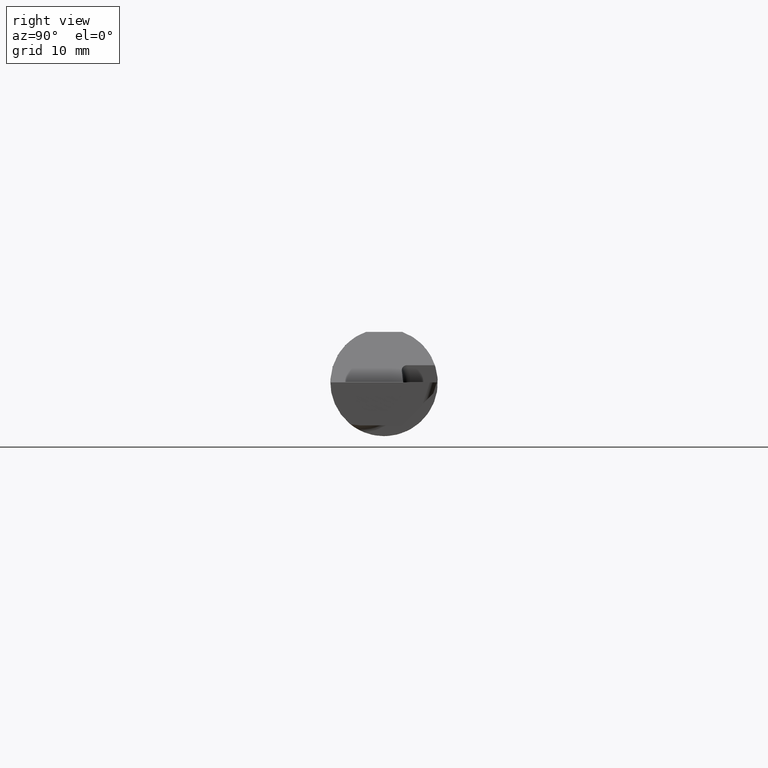
[diagram: clean part render]
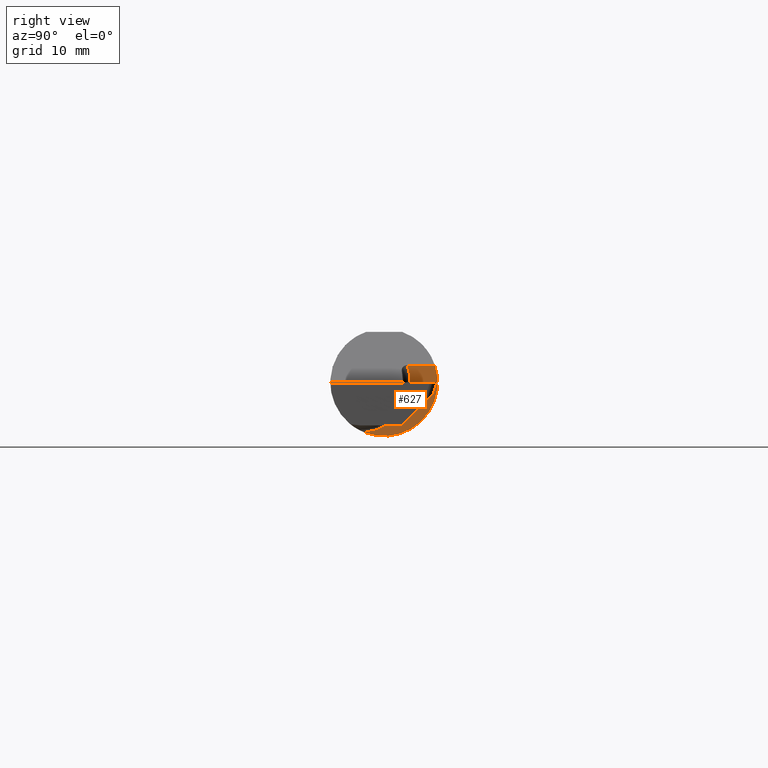
[diagram: same view with one face highlighted and labeled with its STEP entity id]
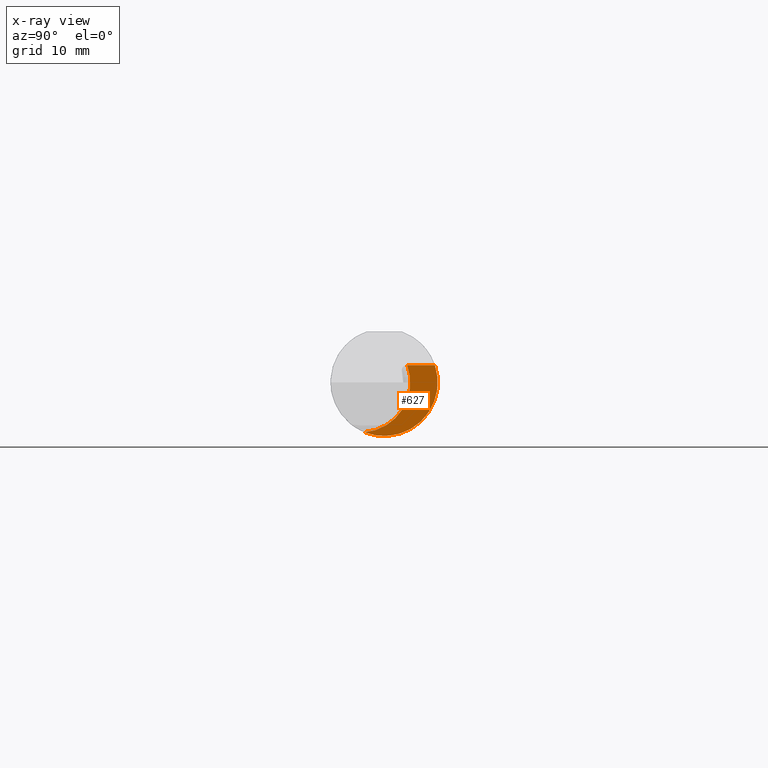
[diagram: x-ray of the same camera — body ghosted, the highlighted face saturated]
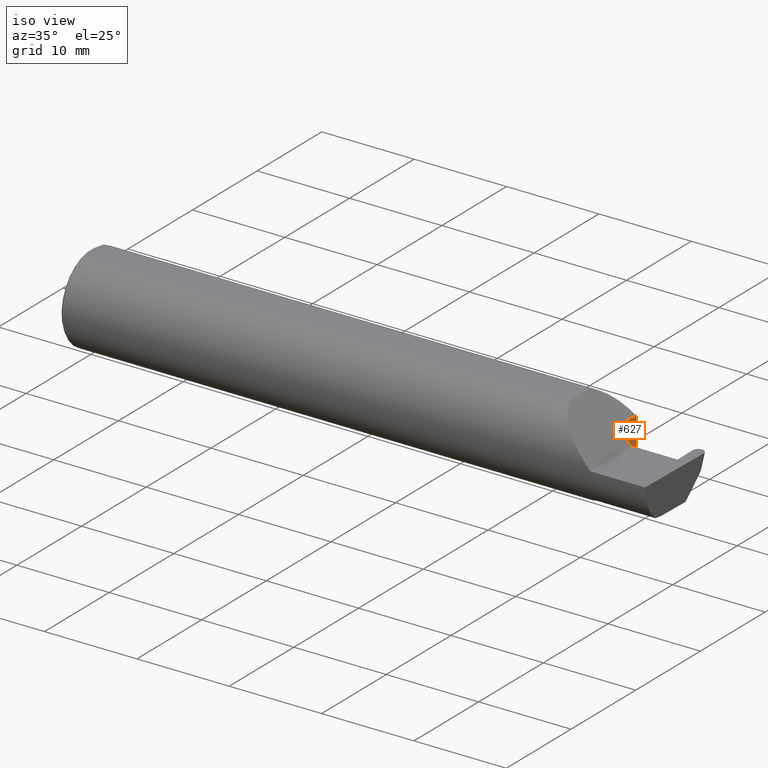
[diagram: same view with one face highlighted and labeled with its STEP entity id]
A machine part, right view. The second image highlights one B-rep face of the part: STEP entity #627.
The next image is the same camera in x-ray: the body ghosted, the highlighted face saturated — about 0% of this face is hidden behind the body in this view.
A second angle (iso view) of the same face is appended — the face is thin or edge-on in the first view.
In plain terms, the highlighted planar face has unit normal (1, 0, 0).
Its self-contained STEP definition (entity closure, byte-faithful):
#61 = CIRCLE ( 'NONE', #122, 0.1750000000000001277 ) ;
#109 = EDGE_CURVE ( 'NONE', #420, #281, #577, .T. ) ;
#120 = DIRECTION ( 'NONE',  ( 1.000000000000000000, 4.724792446347703932E-16, 0.000000000000000000 ) ) ;
#122 = AXIS2_PLACEMENT_3D ( 'NONE', #658, #175, #604 ) ;
#154 = CARTESIAN_POINT ( 'NONE',  ( 2.200000000000000178, 0.08104282222773610822, 0.05999999999999956757 ) ) ;
#164 = DIRECTION ( 'NONE',  ( 1.000000000000000000, 4.724792446347703932E-16, 0.000000000000000000 ) ) ;
#175 = DIRECTION ( 'NONE',  ( -1.000000000000000000, -4.724792446347703932E-16, -0.000000000000000000 ) ) ;
#184 = PLANE ( 'NONE',  #681 ) ;
#251 = AXIS2_PLACEMENT_3D ( 'NONE', #355, #164, #271 ) ;
#271 = DIRECTION ( 'NONE',  ( 0.000000000000000000, 1.000000000000000000, 0.000000000000000000 ) ) ;
#281 = VERTEX_POINT ( 'NONE', #154 ) ;
#298 = CARTESIAN_POINT ( 'NONE',  ( 2.200000000000000178, 0.1774824568795465018, 0.05999999999999961614 ) ) ;
#304 = EDGE_CURVE ( 'NONE', #281, #643, #61, .T. ) ;
#330 = CARTESIAN_POINT ( 'NONE',  ( 2.200000000000000178, -0.2500000000000001110, 0.05999999999999940797 ) ) ;
#332 = EDGE_LOOP ( 'NONE', ( #497, #407, #639 ) ) ;
#336 = DIRECTION ( 'NONE',  ( -4.724792446347703932E-16, 1.000000000000000000, 0.000000000000000000 ) ) ;
#348 = FACE_OUTER_BOUND ( 'NONE', #332, .T. ) ;
#355 = CARTESIAN_POINT ( 'NONE',  ( 2.200000000000000178, 0.000000000000000000, 0.000000000000000000 ) ) ;
#367 = CIRCLE ( 'NONE', #251, 0.1873499999999999888 ) ;
#407 = ORIENTED_EDGE ( 'NONE', *, *, #109, .T. ) ;
#420 = VERTEX_POINT ( 'NONE', #298 ) ;
#436 = EDGE_CURVE ( 'NONE', #643, #420, #367, .T. ) ;
#497 = ORIENTED_EDGE ( 'NONE', *, *, #436, .T. ) ;
#549 = VECTOR ( 'NONE', #703, 39.37007874015748143 ) ;
#577 = LINE ( 'NONE', #330, #549 ) ;
#604 = DIRECTION ( 'NONE',  ( 0.000000000000000000, -1.000000000000000000, 0.000000000000000000 ) ) ;
#627 = ADVANCED_FACE ( 'NONE', ( #348 ), #184, .T. ) ;
#639 = ORIENTED_EDGE ( 'NONE', *, *, #304, .T. ) ;
#643 = VERTEX_POINT ( 'NONE', #663 ) ;
#658 = CARTESIAN_POINT ( 'NONE',  ( 2.200000000000000178, -0.08335000000000011844, 0.000000000000000000 ) ) ;
#663 = CARTESIAN_POINT ( 'NONE',  ( 2.200000000000000178, -0.06851976604679038685, -0.1743704796142199753 ) ) ;
#671 = CARTESIAN_POINT ( 'NONE',  ( 2.200000000000000178, 0.1873499999999999888, 0.000000000000000000 ) ) ;
#681 = AXIS2_PLACEMENT_3D ( 'NONE', #671, #120, #336 ) ;
#703 = DIRECTION ( 'NONE',  ( 4.724792446347703932E-16, -1.000000000000000000, -4.724792446347657586E-16 ) ) ;